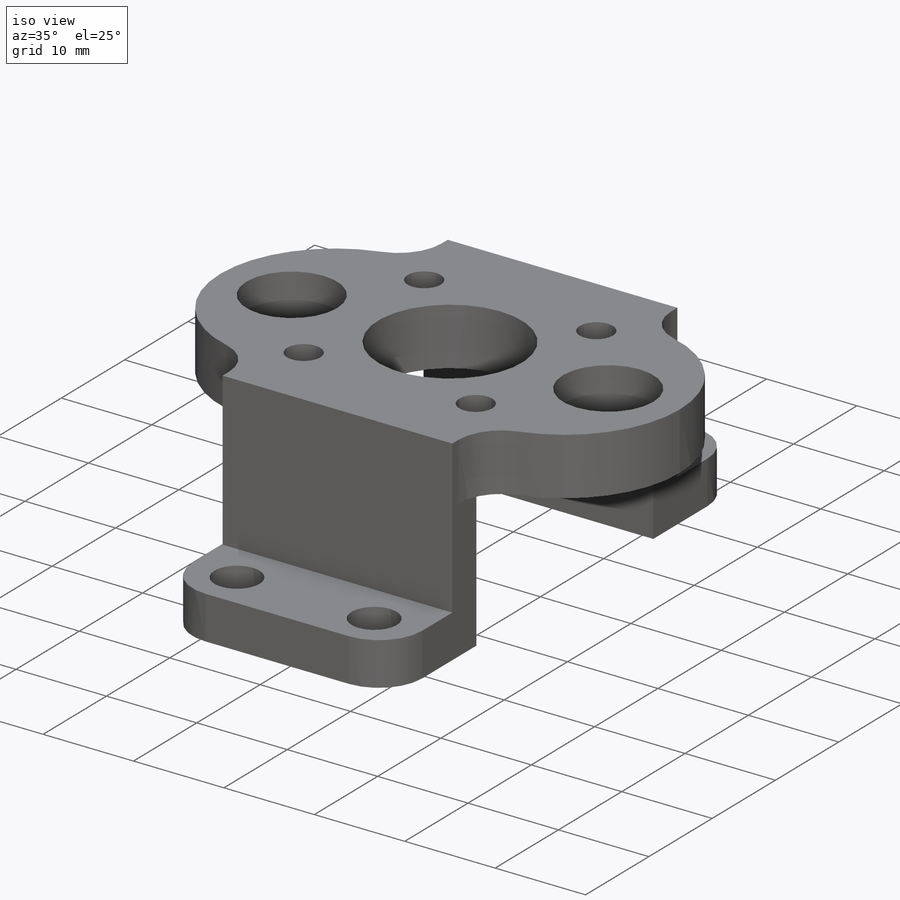
[diagram: iso view]
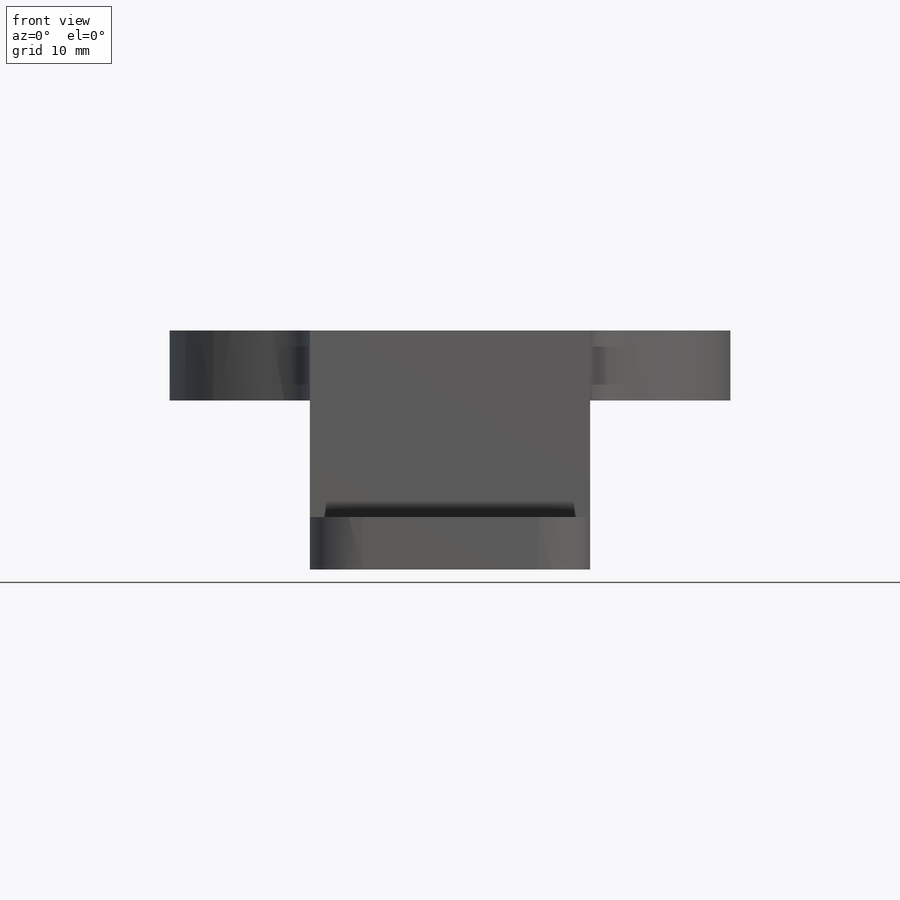
[diagram: front view]
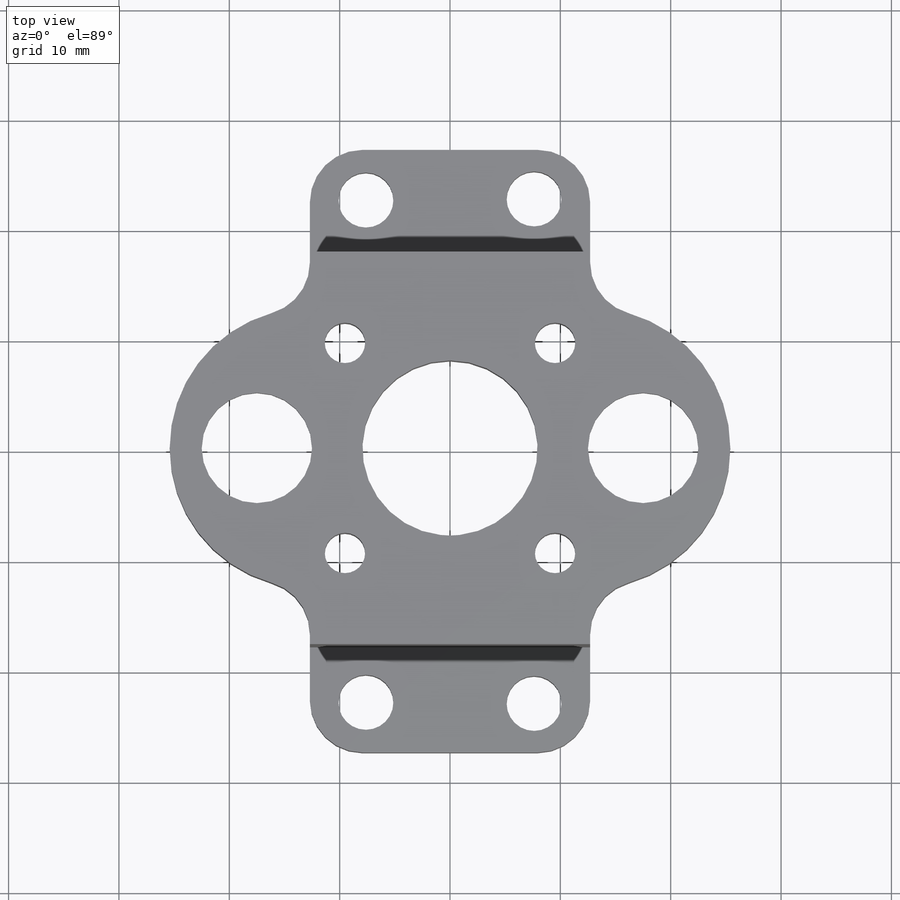
[diagram: top view]
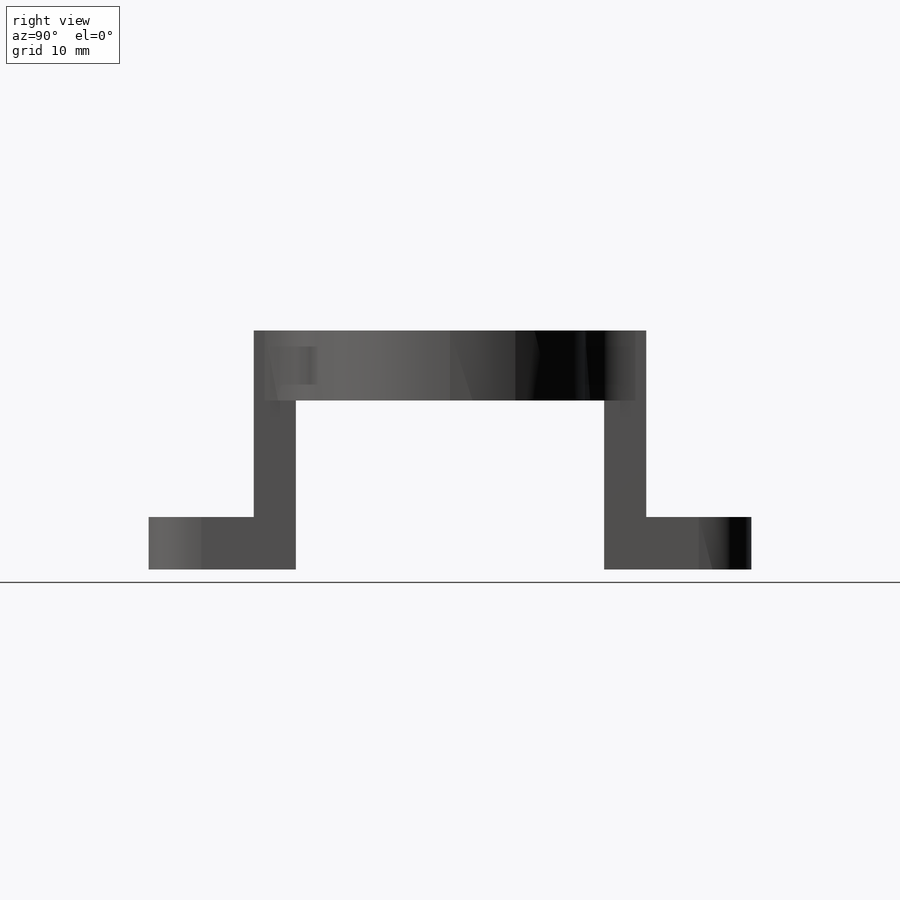
[diagram: right view]
SOLIDWORKS PART (.sldprt)
format: sldprt  version: not decoded by parser v0  size: 307,712 bytes
history: native  units: mm
features: sketch x7, extrude x4, fillet x3, cut_extrude x3, material x1, mirror x1 (+11 scaffold rows collapsed)
feature tree (30):
  scaffold x11  (default folders/planes/origin — collapsed)
  material  "Material <not specified>"
  sketch  "Sketch1"  dims[D1=35.0mm D2=12.0mm D3=15.875mm D4=25.4mm D5=12.7mm D6=50.8mm D7=25.4mm]
  extrude  "Boss-Extrude1"  Depth=6.35mm
  sketch  "Sketch2"  dims[D1=10.0mm]
  extrude  "Boss-Extrude2"  Depth=2.85mm
  fillet  "Fillet1"  Radius=12.7mm
  sketch  "Sketch4"  dims[D1=25.4mm D2=12.7mm D3=5.08mm]
  extrude  "Boss-Extrude5"  [1 undecoded]
  sketch  "Sketch5"  dims[D1=4.7625mm]
  extrude  "Boss-Extrude6"  Depth=9.525mm
  fillet  "Fillet4"  Radius=4.7625mm
  fillet  "Fillet5"  Radius=4.7625mm
  sketch  "Sketch6"  dims[D1=4.9784mm D2=4.9784mm D3=4.9784mm D4=5.08mm D5=5.08mm D6=5.08mm]
  cut_extrude  "Cut-Extrude2"  [1 undecoded]
  sketch  "Sketch10"  dims[D1=1.27mm]
  cut_extrude  "Cut-Extrude4"  [1 undecoded]
  mirror  "Mirror5"
  sketch  "Sketch11"  dims[c1.D1=26.924mm c1.D2=3.6576mm c1.D3=45.0deg c2.D3=4.0]
  cut_extrude  "Cut-Extrude5"  [1 undecoded]
decode coverage: 13 of 18 modeling features carry decoded parameters
note: 4 parameter values undecoded
summary: no parameter record found for 4 features
note: suppression state not decoded; provenance and decode notes live in map.json
